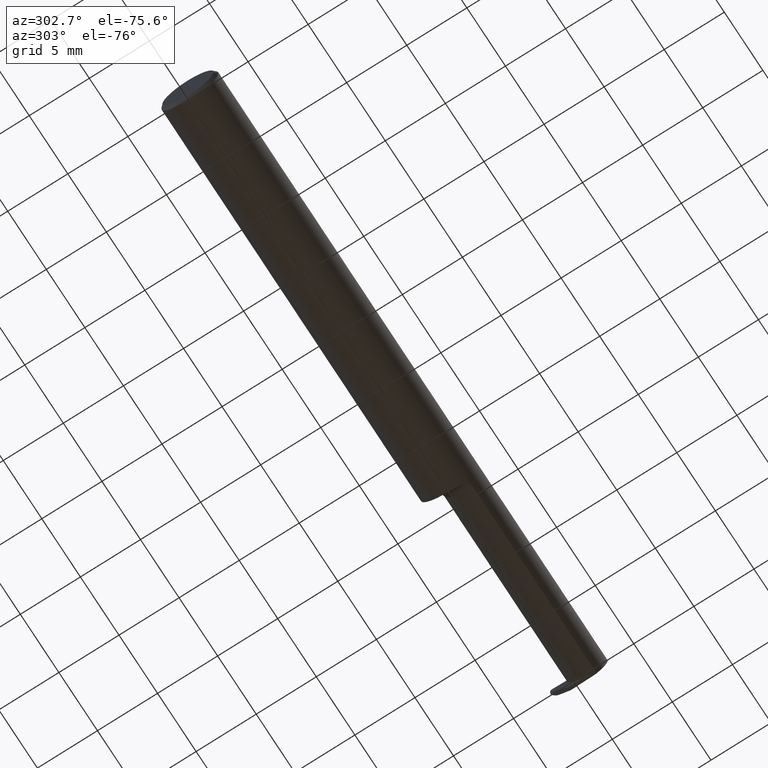
[diagram: clean part render]
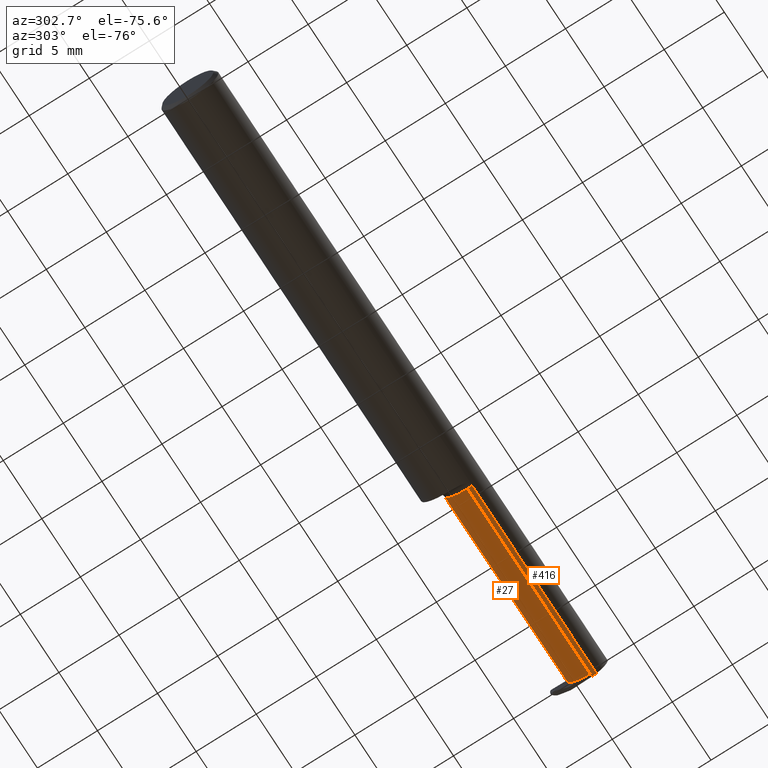
[diagram: same view with one multi-face feature highlighted, each face labeled with its STEP entity id]
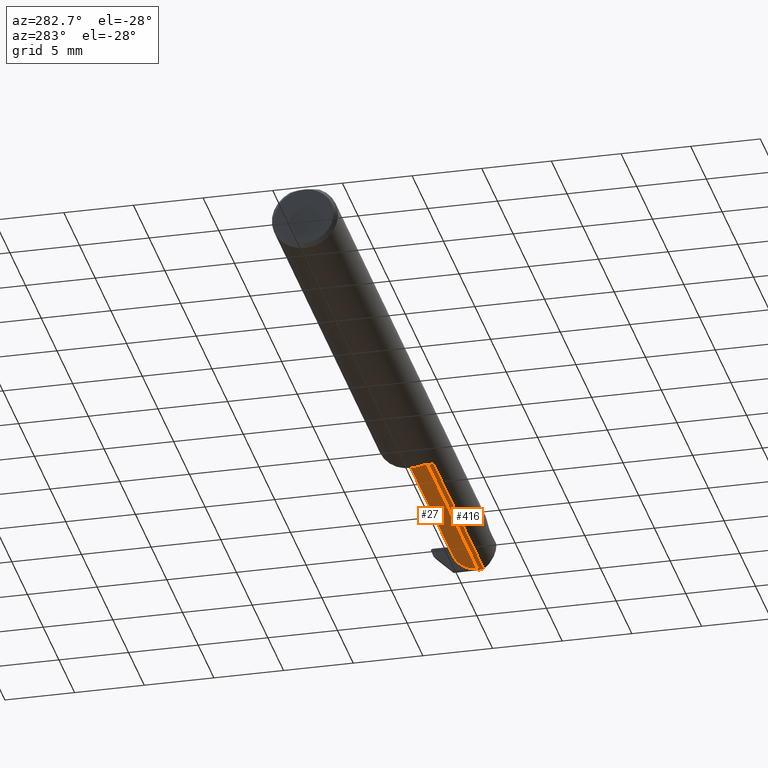
[diagram: same view with one multi-face feature highlighted, each face labeled with its STEP entity id]
A machine part, auxiliary view. The highlighted faces form ONE feature: a constant-radius fillet chain: 2 tangent blend faces with common blend radius 1.905 mm. The faces share edges in the B-rep.
A second angle (auxiliary view) of the same feature is appended — it is thin or edge-on in the first view.
Their STEP definitions:
[1] entity #416 (Cylinder):
#1 = ORIENTED_EDGE ( 'NONE', *, *, #764, .F. ) ;
#13 = DIRECTION ( 'NONE',  ( -1.000000000000000000, -0.000000000000000000, -0.000000000000000000 ) ) ;
#29 = AXIS2_PLACEMENT_3D ( 'NONE', #807, #688, #795 ) ;
#40 = CARTESIAN_POINT ( 'NONE',  ( 1.359999999999999654, -0.04260000000000002673, -0.07500000000000002498 ) ) ;
#81 = AXIS2_PLACEMENT_3D ( 'NONE', #536, #726, #590 ) ;
#91 = FACE_OUTER_BOUND ( 'NONE', #772, .T. ) ;
#114 = DIRECTION ( 'NONE',  ( -1.000000000000000000, -0.000000000000000000, -0.000000000000000000 ) ) ;
#122 = CARTESIAN_POINT ( 'NONE',  ( 2.115884466375952400, -0.04259999999999980469, -0.07500000000000002498 ) ) ;
#163 = VERTEX_POINT ( 'NONE', #294 ) ;
#180 = LINE ( 'NONE', #430, #222 ) ;
#186 = CIRCLE ( 'NONE', #29, 0.07500000000000002498 ) ;
#208 = ORIENTED_EDGE ( 'NONE', *, *, #559, .F. ) ;
#222 = VECTOR ( 'NONE', #366, 39.37007874015748143 ) ;
#239 = LINE ( 'NONE', #291, #759 ) ;
#291 = CARTESIAN_POINT ( 'NONE',  ( 1.671240805000000051, -0.05810704225352111146, -0.07337936794867830348 ) ) ;
#294 = CARTESIAN_POINT ( 'NONE',  ( 1.995213246285213016, -0.04259999999999980469, -0.07500000000000002498 ) ) ;
#306 = CARTESIAN_POINT ( 'NONE',  ( 1.994999172194938941, -0.05810704225352111146, -0.07337936794867830348 ) ) ;
#310 = CARTESIAN_POINT ( 'NONE',  ( 1.359999999999999654, -0.05810704225352111146, -0.07337936794867830348 ) ) ;
#325 = LINE ( 'NONE', #122, #394 ) ;
#331 = ORIENTED_EDGE ( 'NONE', *, *, #597, .F. ) ;
#341 = CYLINDRICAL_SURFACE ( 'NONE', #81, 0.07500000000000002498 ) ;
#366 = DIRECTION ( 'NONE',  ( -1.000000000000000000, -0.000000000000000000, -0.000000000000000000 ) ) ;
#370 = CARTESIAN_POINT ( 'NONE',  ( 1.986094660071884288, -0.04260000000000003367, -0.07500000000000002498 ) ) ;
#390 = VERTEX_POINT ( 'NONE', #40 ) ;
#394 = VECTOR ( 'NONE', #13, 39.37007874015748143 ) ;
#416 = ADVANCED_FACE ( 'NONE', ( #91 ), #341, .T. ) ;
#422 = CARTESIAN_POINT ( 'NONE',  ( 1.994999172194938941, -0.05810704225352111146, -0.07337936794867830348 ) ) ;
#430 = CARTESIAN_POINT ( 'NONE',  ( 1.334999999999999742, -0.04260000000000002673, -0.07500000000000002498 ) ) ;
#437 = ORIENTED_EDGE ( 'NONE', *, *, #451, .F. ) ;
#447 = VERTEX_POINT ( 'NONE', #310 ) ;
#451 = EDGE_CURVE ( 'NONE', #463, #163, #535, .T. ) ;
#463 = VERTEX_POINT ( 'NONE', #306 ) ;
#535 =( BOUNDED_CURVE ( )  B_SPLINE_CURVE ( 3, ( #422, #681, #802, #629 ),
 .UNSPECIFIED., .F., .T. ) 
 B_SPLINE_CURVE_WITH_KNOTS ( ( 4, 4 ),
 ( 0.2552020043920794623, 0.4634648172053393300 ),
 .UNSPECIFIED. ) 
 CURVE ( )  GEOMETRIC_REPRESENTATION_ITEM ( )  RATIONAL_B_SPLINE_CURVE ( ( 1.000000000000000000, 0.9963888149483994816, 0.9963888149483994816, 1.000000000000000000 ) ) 
 REPRESENTATION_ITEM ( '' )  );
#536 = CARTESIAN_POINT ( 'NONE',  ( 1.334999999999999742, -0.04260000000000003367, 0.000000000000000000 ) ) ;
#559 = EDGE_CURVE ( 'NONE', #390, #447, #186, .T. ) ;
#590 = DIRECTION ( 'NONE',  ( 0.000000000000000000, 0.000000000000000000, 1.000000000000000000 ) ) ;
#597 = EDGE_CURVE ( 'NONE', #621, #390, #180, .T. ) ;
#621 = VERTEX_POINT ( 'NONE', #370 ) ;
#629 = CARTESIAN_POINT ( 'NONE',  ( 1.995213246285213016, -0.04259999999999980469, -0.07500000000000002498 ) ) ;
#681 = CARTESIAN_POINT ( 'NONE',  ( 1.995050583981878400, -0.05300374992736053142, -0.07445783144524574515 ) ) ;
#683 = EDGE_CURVE ( 'NONE', #463, #447, #239, .T. ) ;
#688 = DIRECTION ( 'NONE',  ( -1.000000000000000000, -0.000000000000000000, -0.000000000000000000 ) ) ;
#726 = DIRECTION ( 'NONE',  ( -1.000000000000000000, -0.000000000000000000, -0.000000000000000000 ) ) ;
#759 = VECTOR ( 'NONE', #114, 39.37007874015748143 ) ;
#764 = EDGE_CURVE ( 'NONE', #163, #621, #325, .T. ) ;
#770 = ORIENTED_EDGE ( 'NONE', *, *, #683, .T. ) ;
#772 = EDGE_LOOP ( 'NONE', ( #331, #1, #437, #770, #208 ) ) ;
#795 = DIRECTION ( 'NONE',  ( 0.000000000000000000, 0.000000000000000000, 1.000000000000000000 ) ) ;
#802 = CARTESIAN_POINT ( 'NONE',  ( 1.995122200632949427, -0.04781600192481513800, -0.07500000000000002498 ) ) ;
#807 = CARTESIAN_POINT ( 'NONE',  ( 1.359999999999999654, -0.04260000000000003367, 0.000000000000000000 ) ) ;
[2] entity #27 (Cylinder):
#6 = CARTESIAN_POINT ( 'NONE',  ( 1.985000026482436342, 0.02931965133412151037, -0.04667009593691542890 ) ) ;
#7 = VECTOR ( 'NONE', #108, 39.37007874015748143 ) ;
#25 = ORIENTED_EDGE ( 'NONE', *, *, #573, .F. ) ;
#27 = ADVANCED_FACE ( 'NONE', ( #782 ), #473, .T. ) ;
#30 = CARTESIAN_POINT ( 'NONE',  ( 1.834999999999999520, -0.04260000000000003367, 0.07500000000000002498 ) ) ;
#40 = CARTESIAN_POINT ( 'NONE',  ( 1.359999999999999654, -0.04260000000000002673, -0.07500000000000002498 ) ) ;
#42 = CARTESIAN_POINT ( 'NONE',  ( 1.334999999999999742, -0.04260000000000003367, 0.000000000000000000 ) ) ;
#48 = CARTESIAN_POINT ( 'NONE',  ( 1.359999999999999654, -0.04260000000000003367, 0.000000000000000000 ) ) ;
#54 = CARTESIAN_POINT ( 'NONE',  ( 1.977266484668011248, 0.03233910125649560457, -0.001743911843603002240 ) ) ;
#62 = ORIENTED_EDGE ( 'NONE', *, *, #333, .F. ) ;
#89 = ORIENTED_EDGE ( 'NONE', *, *, #597, .T. ) ;
#108 = DIRECTION ( 'NONE',  ( -1.000000000000000000, -0.000000000000000000, -0.000000000000000000 ) ) ;
#131 = DIRECTION ( 'NONE',  ( 0.000000000000000000, 0.000000000000000000, 1.000000000000000000 ) ) ;
#132 = AXIS2_PLACEMENT_3D ( 'NONE', #48, #229, #245 ) ;
#139 = EDGE_CURVE ( 'NONE', #612, #665, #194, .T. ) ;
#149 = LINE ( 'NONE', #210, #363 ) ;
#171 = DIRECTION ( 'NONE',  ( -1.000000000000000000, -0.000000000000000000, -0.000000000000000000 ) ) ;
#180 = LINE ( 'NONE', #430, #222 ) ;
#187 = VERTEX_POINT ( 'NONE', #324 ) ;
#194 = LINE ( 'NONE', #789, #309 ) ;
#210 = CARTESIAN_POINT ( 'NONE',  ( 1.334999999999999742, -0.04260000000000003367, 0.07500000000000002498 ) ) ;
#220 = EDGE_CURVE ( 'NONE', #187, #364, #149, .T. ) ;
#222 = VECTOR ( 'NONE', #366, 39.37007874015748143 ) ;
#229 = DIRECTION ( 'NONE',  ( -1.000000000000000000, -0.000000000000000000, -0.000000000000000000 ) ) ;
#236 = CARTESIAN_POINT ( 'NONE',  ( 1.359999999999999654, -0.04260000000000003367, 0.07500000000000002498 ) ) ;
#240 = B_SPLINE_CURVE_WITH_KNOTS ( 'NONE', 3,
 ( #436, #739, #54, #501 ),
 .UNSPECIFIED., .F., .F.,
 ( 4, 4 ),
 ( 0.000000000000000000, 1.000000000000000000 ),
 .UNSPECIFIED. ) ;
#245 = DIRECTION ( 'NONE',  ( 0.000000000000000000, 0.000000000000000000, 1.000000000000000000 ) ) ;
#250 = CARTESIAN_POINT ( 'NONE',  ( 1.986043175114837744, -0.001060451341131617544, -0.07500000000000003886 ) ) ;
#258 =( BOUNDED_CURVE ( )  B_SPLINE_CURVE ( 3, ( #623, #250, #6, #493 ),
 .UNSPECIFIED., .F., .T. ) 
 B_SPLINE_CURVE_WITH_KNOTS ( ( 4, 4 ),
 ( 3.176499238629679756, 4.677482395344800814 ),
 .UNSPECIFIED. ) 
 CURVE ( )  GEOMETRIC_REPRESENTATION_ITEM ( )  RATIONAL_B_SPLINE_CURVE ( ( 1.000000000000000000, 0.8209024677461141950, 0.8209024677461141950, 1.000000000000000000 ) ) 
 REPRESENTATION_ITEM ( '' )  );
#264 = VERTEX_POINT ( 'NONE', #457 ) ;
#275 = CARTESIAN_POINT ( 'NONE',  ( 1.834999999999999298, 0.001333982822017827988, 0.07500000000000002498 ) ) ;
#288 = CARTESIAN_POINT ( 'NONE',  ( 1.910000000000000142, 0.03239999999999997743, 8.143901214329935029E-17 ) ) ;
#290 = DIRECTION ( 'NONE',  ( 1.000000000000000000, 0.000000000000000000, 0.000000000000000000 ) ) ;
#303 = EDGE_CURVE ( 'NONE', #187, #612, #372, .T. ) ;
#309 = VECTOR ( 'NONE', #290, 39.37007874015748143 ) ;
#324 = CARTESIAN_POINT ( 'NONE',  ( 1.834999999999999520, -0.04260000000000003367, 0.07500000000000002498 ) ) ;
#333 = EDGE_CURVE ( 'NONE', #264, #686, #407, .T. ) ;
#349 = ORIENTED_EDGE ( 'NONE', *, *, #479, .F. ) ;
#357 = CARTESIAN_POINT ( 'NONE',  ( 1.866066017177981706, 0.03239999999999996355, 0.04393398282201791544 ) ) ;
#363 = VECTOR ( 'NONE', #524, 39.37007874015748143 ) ;
#364 = VERTEX_POINT ( 'NONE', #236 ) ;
#366 = DIRECTION ( 'NONE',  ( -1.000000000000000000, -0.000000000000000000, -0.000000000000000000 ) ) ;
#370 = CARTESIAN_POINT ( 'NONE',  ( 1.986094660071884288, -0.04260000000000003367, -0.07500000000000002498 ) ) ;
#372 =( BOUNDED_CURVE ( )  B_SPLINE_CURVE ( 3, ( #30, #275, #357, #288 ),
 .UNSPECIFIED., .F., .T. ) 
 B_SPLINE_CURVE_WITH_KNOTS ( ( 4, 4 ),
 ( 0.000000000000000000, 1.570796326794896114 ),
 .UNSPECIFIED. ) 
 CURVE ( )  GEOMETRIC_REPRESENTATION_ITEM ( )  RATIONAL_B_SPLINE_CURVE ( ( 1.000000000000000000, 0.8047378541243650485, 0.8047378541243650485, 1.000000000000000000 ) ) 
 REPRESENTATION_ITEM ( '' )  );
#390 = VERTEX_POINT ( 'NONE', #40 ) ;
#407 = LINE ( 'NONE', #675, #7 ) ;
#423 = ORIENTED_EDGE ( 'NONE', *, *, #303, .T. ) ;
#430 = CARTESIAN_POINT ( 'NONE',  ( 1.334999999999999742, -0.04260000000000002673, -0.07500000000000002498 ) ) ;
#436 = CARTESIAN_POINT ( 'NONE',  ( 1.977144687181002336, 0.03221730376948682417, -0.005231735530809015176 ) ) ;
#440 = EDGE_CURVE ( 'NONE', #621, #264, #258, .T. ) ;
#457 = CARTESIAN_POINT ( 'NONE',  ( 1.983525690212190273, 0.03221730376948681029, -0.005231735530809572890 ) ) ;
#473 = CYLINDRICAL_SURFACE ( 'NONE', #745, 0.07500000000000002498 ) ;
#479 = EDGE_CURVE ( 'NONE', #686, #665, #240, .T. ) ;
#492 = CIRCLE ( 'NONE', #132, 0.07500000000000002498 ) ;
#493 = CARTESIAN_POINT ( 'NONE',  ( 1.983525690212190273, 0.03221730376948681029, -0.005231735530809572890 ) ) ;
#498 = EDGE_LOOP ( 'NONE', ( #712, #89, #25, #624, #423, #570, #349, #62 ) ) ;
#501 = CARTESIAN_POINT ( 'NONE',  ( 1.977327383411515482, 0.03239999999999999825, 0.000000000000000000 ) ) ;
#524 = DIRECTION ( 'NONE',  ( -1.000000000000000000, -0.000000000000000000, -0.000000000000000000 ) ) ;
#543 = CARTESIAN_POINT ( 'NONE',  ( 1.977144687181002336, 0.03221730376948682417, -0.005231735530809015176 ) ) ;
#570 = ORIENTED_EDGE ( 'NONE', *, *, #139, .T. ) ;
#573 = EDGE_CURVE ( 'NONE', #364, #390, #492, .T. ) ;
#597 = EDGE_CURVE ( 'NONE', #621, #390, #180, .T. ) ;
#612 = VERTEX_POINT ( 'NONE', #790 ) ;
#621 = VERTEX_POINT ( 'NONE', #370 ) ;
#623 = CARTESIAN_POINT ( 'NONE',  ( 1.986094660071884288, -0.04260000000000003367, -0.07500000000000002498 ) ) ;
#624 = ORIENTED_EDGE ( 'NONE', *, *, #220, .F. ) ;
#665 = VERTEX_POINT ( 'NONE', #667 ) ;
#667 = CARTESIAN_POINT ( 'NONE',  ( 1.977327383411515482, 0.03239999999999999825, 0.000000000000000000 ) ) ;
#675 = CARTESIAN_POINT ( 'NONE',  ( 1.334999999999999742, 0.03221730376948683805, -0.005231735530808820887 ) ) ;
#686 = VERTEX_POINT ( 'NONE', #543 ) ;
#712 = ORIENTED_EDGE ( 'NONE', *, *, #440, .F. ) ;
#739 = CARTESIAN_POINT ( 'NONE',  ( 1.977205585924506570, 0.03227820251299121784, -0.003487823687206005347 ) ) ;
#745 = AXIS2_PLACEMENT_3D ( 'NONE', #42, #171, #131 ) ;
#782 = FACE_OUTER_BOUND ( 'NONE', #498, .T. ) ;
#789 = CARTESIAN_POINT ( 'NONE',  ( 1.334999999999999742, 0.03239999999999997743, 8.143901214329935029E-17 ) ) ;
#790 = CARTESIAN_POINT ( 'NONE',  ( 1.910000000000000142, 0.03239999999999997743, 8.143901214329935029E-17 ) ) ;